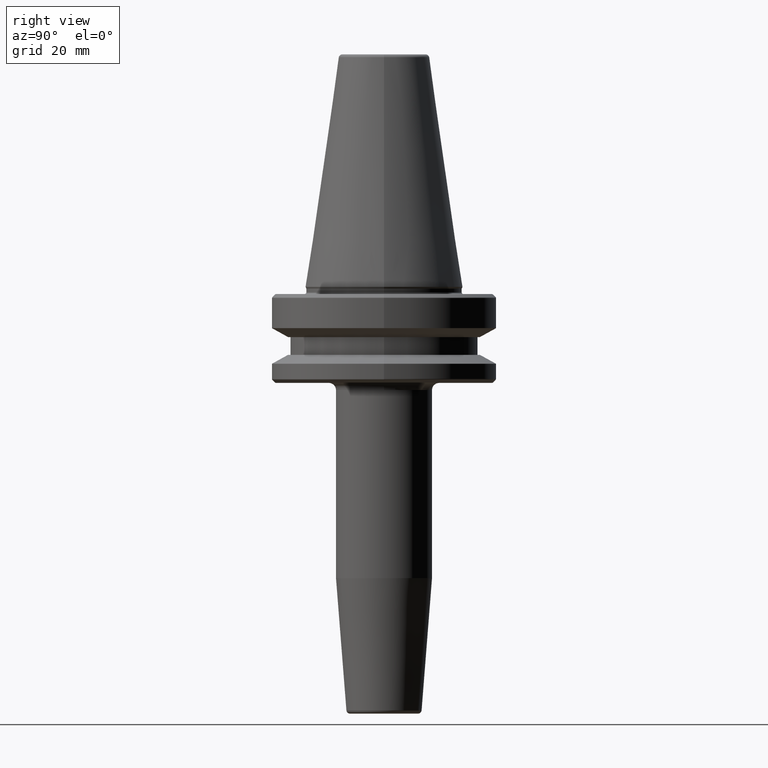
[diagram: clean part render]
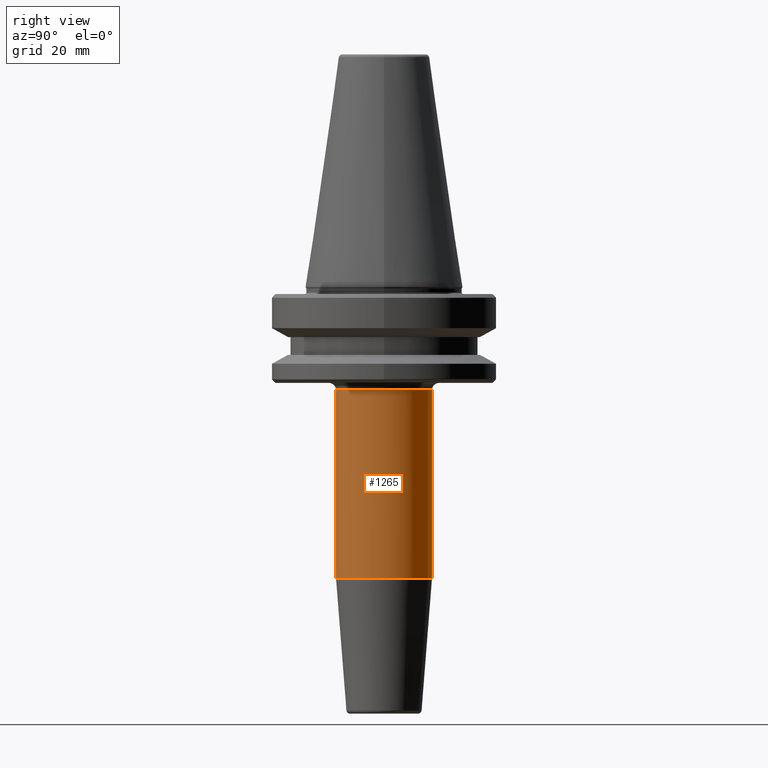
[diagram: same view with one face highlighted and labeled with its STEP entity id]
A machine part, right view. The second image highlights one B-rep face of the part: STEP entity #1265.
In plain terms, the highlighted cylindrical surface (partial cylindrical patch) has radius 13.5 mm, axis along (-0, 0, -1).
Its self-contained STEP definition (entity closure, byte-faithful):
#12 = EDGE_CURVE ( 'NONE', #624, #714, #131, .T. ) ;
#53 = ORIENTED_EDGE ( 'NONE', *, *, #12, .T. ) ;
#58 = FACE_OUTER_BOUND ( 'NONE', #227, .T. ) ;
#61 = CARTESIAN_POINT ( 'NONE',  ( 0.0000000000000000000, 3.035304478039067100E-015, -81.88138579146910000 ) ) ;
#87 = CIRCLE ( 'NONE', #991, 13.49999999999999800 ) ;
#113 = EDGE_CURVE ( 'NONE', #714, #809, #1152, .T. ) ;
#131 = CIRCLE ( 'NONE', #1173, 13.49999999999999800 ) ;
#153 = CIRCLE ( 'NONE', #695, 13.49999999999999600 ) ;
#174 = CARTESIAN_POINT ( 'NONE',  ( 0.0000000000000000000, 13.49999999999999800, -28.99999999999999600 ) ) ;
#227 = EDGE_LOOP ( 'NONE', ( #1019, #53, #1037, #1132, #658 ) ) ;
#241 = VECTOR ( 'NONE', #384, 1000.000000000000000 ) ;
#262 = DIRECTION ( 'NONE',  ( -0.0000000000000000000, 5.530662963891270900E-017, -1.000000000000000000 ) ) ;
#311 = DIRECTION ( 'NONE',  ( -0.0000000000000000000, 5.530662963891270900E-017, -1.000000000000000000 ) ) ;
#326 = CARTESIAN_POINT ( 'NONE',  ( 0.0000000000000000000, 1.106132592778247800E-016, -28.99999999999999600 ) ) ;
#375 = CARTESIAN_POINT ( 'NONE',  ( 0.0000000000000000000, 13.50000000000000400, -120.0000000000000000 ) ) ;
#384 = DIRECTION ( 'NONE',  ( -0.0000000000000000000, 5.530662963891270900E-017, -1.000000000000000000 ) ) ;
#386 = EDGE_CURVE ( 'NONE', #1122, #624, #87, .T. ) ;
#395 = DIRECTION ( 'NONE',  ( -1.000000000000000000, 0.0000000000000000000, 0.0000000000000000000 ) ) ;
#494 = VERTEX_POINT ( 'NONE', #884 ) ;
#551 = EDGE_CURVE ( 'NONE', #494, #809, #153, .T. ) ;
#603 = DIRECTION ( 'NONE',  ( 0.0000000000000000000, 0.0000000000000000000, -1.000000000000000000 ) ) ;
#624 = VERTEX_POINT ( 'NONE', #1079 ) ;
#649 = CARTESIAN_POINT ( 'NONE',  ( 1.653273178848927100E-015, -13.50000000000000000, -28.99999999999999600 ) ) ;
#658 = ORIENTED_EDGE ( 'NONE', *, *, #1032, .F. ) ;
#689 = AXIS2_PLACEMENT_3D ( 'NONE', #760, #1257, #956 ) ;
#695 = AXIS2_PLACEMENT_3D ( 'NONE', #61, #262, #1273 ) ;
#714 = VERTEX_POINT ( 'NONE', #649 ) ;
#760 = CARTESIAN_POINT ( 'NONE',  ( 0.0000000000000000000, 5.143516556418881000E-015, -120.0000000000000000 ) ) ;
#796 = DIRECTION ( 'NONE',  ( -1.000000000000000000, 0.0000000000000000000, 0.0000000000000000000 ) ) ;
#799 = CYLINDRICAL_SURFACE ( 'NONE', #689, 13.49999999999999800 ) ;
#800 = CARTESIAN_POINT ( 'NONE',  ( 0.0000000000000000000, 1.106132592778247800E-016, -28.99999999999999600 ) ) ;
#809 = VERTEX_POINT ( 'NONE', #1266 ) ;
#815 = LINE ( 'NONE', #375, #241 ) ;
#849 = VECTOR ( 'NONE', #311, 1000.000000000000000 ) ;
#884 = CARTESIAN_POINT ( 'NONE',  ( 1.653273178848926300E-015, 13.50000000000000000, -81.88138579146910000 ) ) ;
#923 = CARTESIAN_POINT ( 'NONE',  ( 1.653273178848926700E-015, -13.49999999999999300, -120.0000000000000000 ) ) ;
#956 = DIRECTION ( 'NONE',  ( 0.0000000000000000000, 1.000000000000000000, 0.0000000000000000000 ) ) ;
#991 = AXIS2_PLACEMENT_3D ( 'NONE', #800, #1167, #796 ) ;
#1019 = ORIENTED_EDGE ( 'NONE', *, *, #386, .T. ) ;
#1032 = EDGE_CURVE ( 'NONE', #1122, #494, #815, .T. ) ;
#1037 = ORIENTED_EDGE ( 'NONE', *, *, #113, .T. ) ;
#1079 = CARTESIAN_POINT ( 'NONE',  ( 13.49999999999999800, 1.886351118041486900E-015, -28.99999999999999600 ) ) ;
#1122 = VERTEX_POINT ( 'NONE', #174 ) ;
#1132 = ORIENTED_EDGE ( 'NONE', *, *, #551, .F. ) ;
#1152 = LINE ( 'NONE', #923, #849 ) ;
#1167 = DIRECTION ( 'NONE',  ( 0.0000000000000000000, 0.0000000000000000000, -1.000000000000000000 ) ) ;
#1173 = AXIS2_PLACEMENT_3D ( 'NONE', #326, #603, #395 ) ;
#1257 = DIRECTION ( 'NONE',  ( -0.0000000000000000000, 5.530662963891270900E-017, -1.000000000000000000 ) ) ;
#1265 = ADVANCED_FACE ( 'NONE', ( #58 ), #799, .T. ) ;
#1266 = CARTESIAN_POINT ( 'NONE',  ( 0.0000000000000000000, -13.49999999999999300, -81.88138579146910000 ) ) ;
#1273 = DIRECTION ( 'NONE',  ( 0.0000000000000000000, 1.000000000000000000, 0.0000000000000000000 ) ) ;